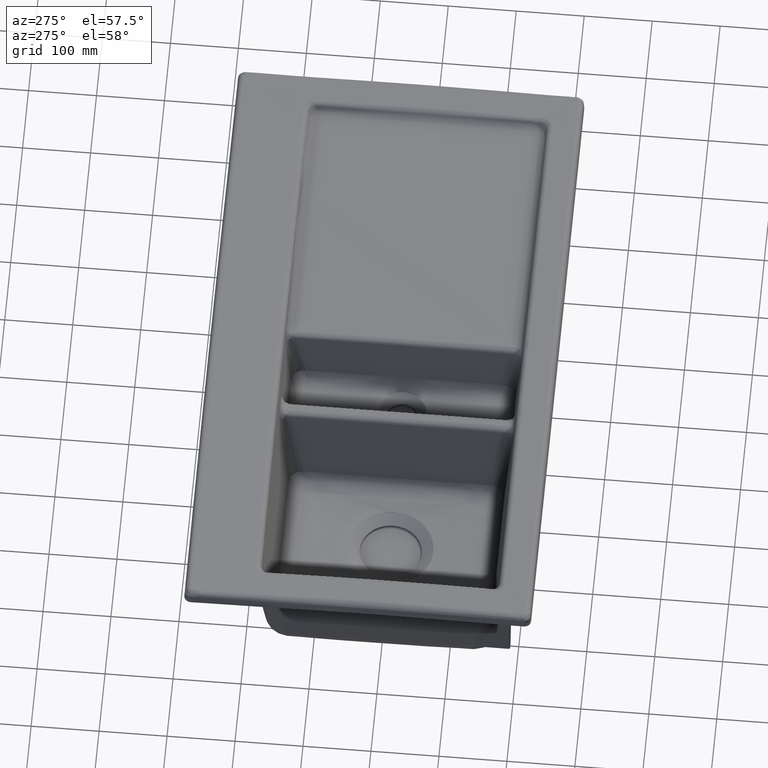
[diagram: clean part render]
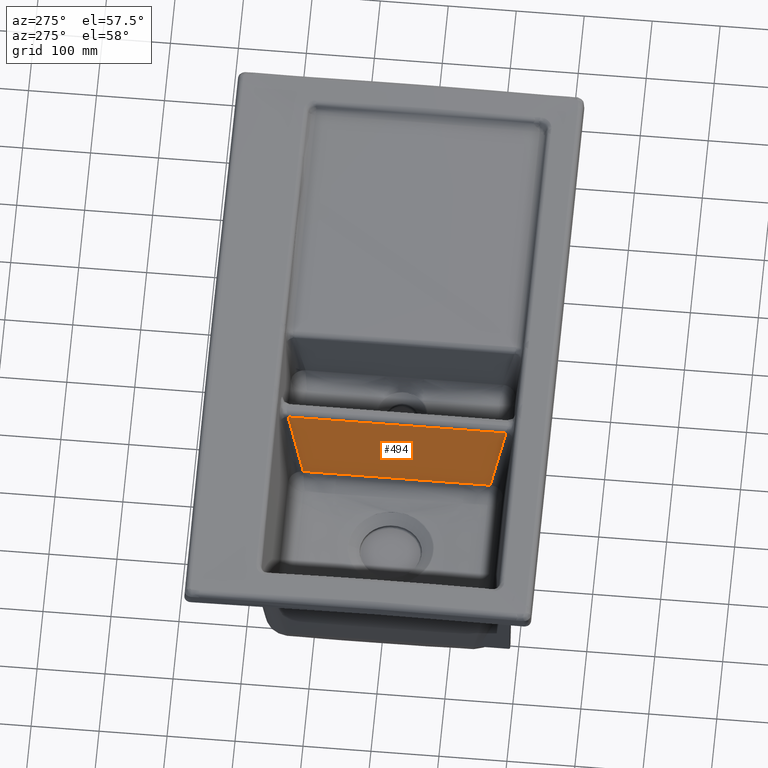
[diagram: same view with one face highlighted and labeled with its STEP entity id]
A machine part, auxiliary view. The second image highlights one B-rep face of the part: STEP entity #494.
In plain terms, the highlighted face is a freeform B-spline surface patch.
Its self-contained STEP definition (entity closure, byte-faithful):
#276=(
BOUNDED_CURVE()
B_SPLINE_CURVE(3,(#8408,#8409,#8410,#8411,#8412,#8413),.UNSPECIFIED.,.F.,
 .F.)
B_SPLINE_CURVE_WITH_KNOTS((4,2,4),(0.,0.450000000000168,1.),
 .UNSPECIFIED.)
CURVE()
GEOMETRIC_REPRESENTATION_ITEM()
RATIONAL_B_SPLINE_CURVE((1.,1.,1.,1.,1.,1.))
REPRESENTATION_ITEM('')
);
#279=(
BOUNDED_CURVE()
B_SPLINE_CURVE(3,(#8440,#8441,#8442,#8443,#8444,#8445),.UNSPECIFIED.,.F.,
 .F.)
B_SPLINE_CURVE_WITH_KNOTS((4,2,4),(0.,0.55000000000005,1.),
 .UNSPECIFIED.)
CURVE()
GEOMETRIC_REPRESENTATION_ITEM()
RATIONAL_B_SPLINE_CURVE((1.,1.,1.,1.,1.,1.))
REPRESENTATION_ITEM('')
);
#281=(
BOUNDED_CURVE()
B_SPLINE_CURVE(3,(#8673,#8674,#8675,#8676),.UNSPECIFIED.,.F.,.F.)
B_SPLINE_CURVE_WITH_KNOTS((4,4),(0.,1.),.UNSPECIFIED.)
CURVE()
GEOMETRIC_REPRESENTATION_ITEM()
RATIONAL_B_SPLINE_CURVE((1.,1.,1.,1.))
REPRESENTATION_ITEM('')
);
#494=ADVANCED_FACE('',(#950),#776,.T.);
#776=B_SPLINE_SURFACE_WITH_KNOTS('',1,1,((#10334,#10335),(#10336,#10337)),
 .UNSPECIFIED.,.F.,.F.,.F.,(2,2),(2,2),(0.,1.),(0.,1.),.UNSPECIFIED.);
#950=FACE_OUTER_BOUND('',#1271,.T.);
#1271=EDGE_LOOP('',(#1790,#1791,#1792,#1793,#1794,#1795));
#1790=ORIENTED_EDGE('',*,*,#3664,.F.);
#1791=ORIENTED_EDGE('',*,*,#3725,.T.);
#1792=ORIENTED_EDGE('',*,*,#3671,.F.);
#1793=ORIENTED_EDGE('',*,*,#3726,.T.);
#1794=ORIENTED_EDGE('',*,*,#3667,.F.);
#1795=ORIENTED_EDGE('',*,*,#3670,.F.);
#3162=VERTEX_POINT('',#8407);
#3163=VERTEX_POINT('',#8414);
#3164=VERTEX_POINT('',#8439);
#3165=VERTEX_POINT('',#8446);
#3167=VERTEX_POINT('',#8677);
#3168=VERTEX_POINT('',#8678);
#3664=EDGE_CURVE('',#3162,#3163,#276,.T.);
#3667=EDGE_CURVE('',#3164,#3165,#279,.T.);
#3670=EDGE_CURVE('',#3163,#3164,#4422,.T.);
#3671=EDGE_CURVE('',#3167,#3168,#281,.T.);
#3725=EDGE_CURVE('',#3162,#3168,#4467,.T.);
#3726=EDGE_CURVE('',#3167,#3165,#4468,.T.);
#4422=B_SPLINE_CURVE_WITH_KNOTS('',3,(#8491,#8492,#8493,#8494,#8495,#8496,
#8497,#8498,#8499,#8500,#8501,#8502,#8503),.UNSPECIFIED.,.F.,.F.,(4,3,3,
3,4),(0.,0.25,0.5,0.75,1.),.UNSPECIFIED.);
#4467=B_SPLINE_CURVE_WITH_KNOTS('',3,(#10326,#10327,#10328,#10329),
 .UNSPECIFIED.,.F.,.F.,(4,4),(0.,1.),.UNSPECIFIED.);
#4468=B_SPLINE_CURVE_WITH_KNOTS('',3,(#10330,#10331,#10332,#10333),
 .UNSPECIFIED.,.F.,.F.,(4,4),(0.,1.),.UNSPECIFIED.);
#8407=CARTESIAN_POINT('',(-164.212148233048,-137.328091995141,-172.000000110773));
#8408=CARTESIAN_POINT('',(-164.212148221405,-137.32809201463,-172.));
#8409=CARTESIAN_POINT('',(-164.212148221395,-131.557318862053,-172.));
#8410=CARTESIAN_POINT('',(-164.212148221386,-125.78654570949,-171.999999999999));
#8411=CARTESIAN_POINT('',(-164.212148221364,-112.962605370413,-172.000000000001));
#8412=CARTESIAN_POINT('',(-164.212148221355,-105.909438183959,-172.000000000029));
#8413=CARTESIAN_POINT('',(-164.212148221341,-98.8562709974719,-172.));
#8414=CARTESIAN_POINT('',(-164.21214822134,-98.8571302583538,-171.999999999998));
#8439=CARTESIAN_POINT('',(-164.212148221025,89.3444150789633,-172.000000000003));
#8440=CARTESIAN_POINT('',(-164.212148221025,89.3461457479903,-172.));
#8441=CARTESIAN_POINT('',(-164.21214822101,98.2131514845818,-172.000000000001));
#8442=CARTESIAN_POINT('',(-164.212148220995,107.080157221233,-171.999999999998));
#8443=CARTESIAN_POINT('',(-164.212148220968,123.201985833206,-172.000000000001));
#8444=CARTESIAN_POINT('',(-164.212148220956,130.456808708636,-171.999999999999));
#8445=CARTESIAN_POINT('',(-164.212148220943,137.711631584042,-171.999999999999));
#8446=CARTESIAN_POINT('',(-164.212147945952,137.711631240699,-171.999997383634));
#8491=CARTESIAN_POINT('',(-164.212148221341,-98.8579888155359,-172.));
#8492=CARTESIAN_POINT('',(-164.212148221317,-83.1743113916358,-172.000000000025));
#8493=CARTESIAN_POINT('',(-164.21214822129,-67.4906339674126,-172.00000000002));
#8494=CARTESIAN_POINT('',(-164.212148221262,-51.8069565435446,-172.));
#8495=CARTESIAN_POINT('',(-164.212148221233,-36.1232791196766,-171.99999999998));
#8496=CARTESIAN_POINT('',(-164.212148221211,-20.43960169553,-172.00000000002));
#8497=CARTESIAN_POINT('',(-164.212148221183,-4.75592427155317,-172.));
#8498=CARTESIAN_POINT('',(-164.212148221154,10.9277531524237,-171.99999999998));
#8499=CARTESIAN_POINT('',(-164.212148221132,26.6114305764831,-172.00000000002));
#8500=CARTESIAN_POINT('',(-164.212148221104,42.2951080004382,-172.));
#8501=CARTESIAN_POINT('',(-164.212148221075,57.9787854243932,-171.99999999998));
#8502=CARTESIAN_POINT('',(-164.212148221051,73.662462848464,-171.999999999997));
#8503=CARTESIAN_POINT('',(-164.212148221025,89.3461402724295,-172.));
#8673=CARTESIAN_POINT('',(-151.091331974398,161.153532252417,-47.163772293858));
#8674=CARTESIAN_POINT('',(-151.091331974582,54.2960317976078,-47.1637722938969));
#8675=CARTESIAN_POINT('',(-151.091331975199,-52.5614686572005,-47.1637722980695));
#8676=CARTESIAN_POINT('',(-151.091331974953,-159.418969112009,-47.1637722940215));
#8677=CARTESIAN_POINT('',(-151.091332041736,161.153532251727,-47.1637722904293));
#8678=CARTESIAN_POINT('',(-151.091332004732,-159.418969111571,-47.1637722932354));
#10326=CARTESIAN_POINT('',(-164.212148267977,-137.328091936323,-172.0000004431));
#10327=CARTESIAN_POINT('',(-159.838542836961,-144.691717661552,-130.387924393334));
#10328=CARTESIAN_POINT('',(-155.464937405946,-152.055343386781,-88.7758483435685));
#10329=CARTESIAN_POINT('',(-151.09133197493,-159.418969112009,-47.1637722938029));
#10330=CARTESIAN_POINT('',(-151.091331974398,161.153532252417,-47.1637722938588));
#10331=CARTESIAN_POINT('',(-155.464937201246,153.339565362958,-88.7758464008563));
#10332=CARTESIAN_POINT('',(-159.838542428094,145.5255984735,-130.387920507854));
#10333=CARTESIAN_POINT('',(-164.212147654942,137.711631584042,-171.999994614851));
#10334=CARTESIAN_POINT('',(-164.212148268017,-161.342404120196,-172.000000443096));
#10335=CARTESIAN_POINT('',(-164.212148267478,163.076967260603,-172.000000443152));
#10336=CARTESIAN_POINT('',(-151.091331974934,-161.342404120196,-47.1637722938025));
#10337=CARTESIAN_POINT('',(-151.091331974395,163.076967260603,-47.1637722938591));